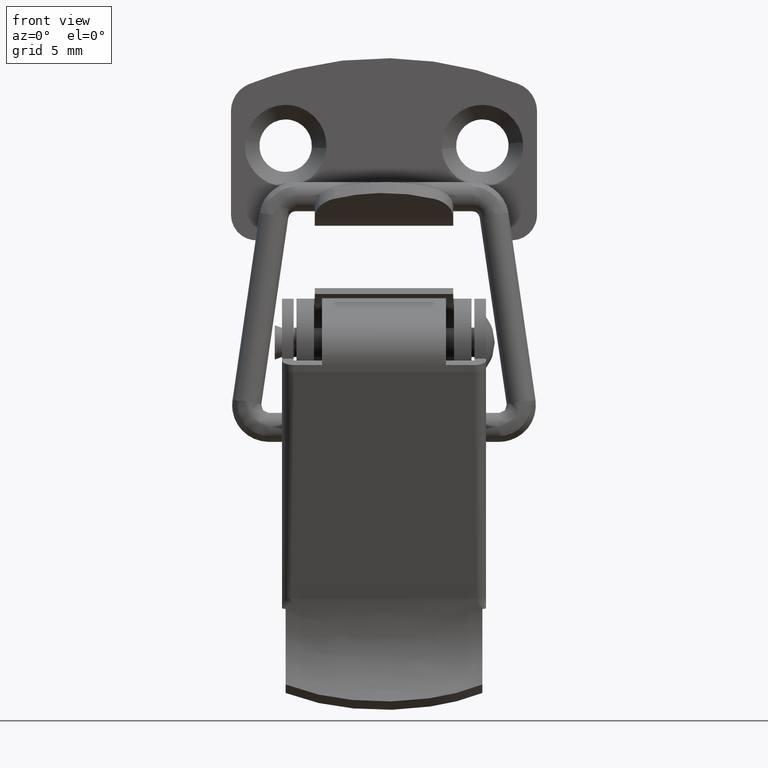
[diagram: clean part render]
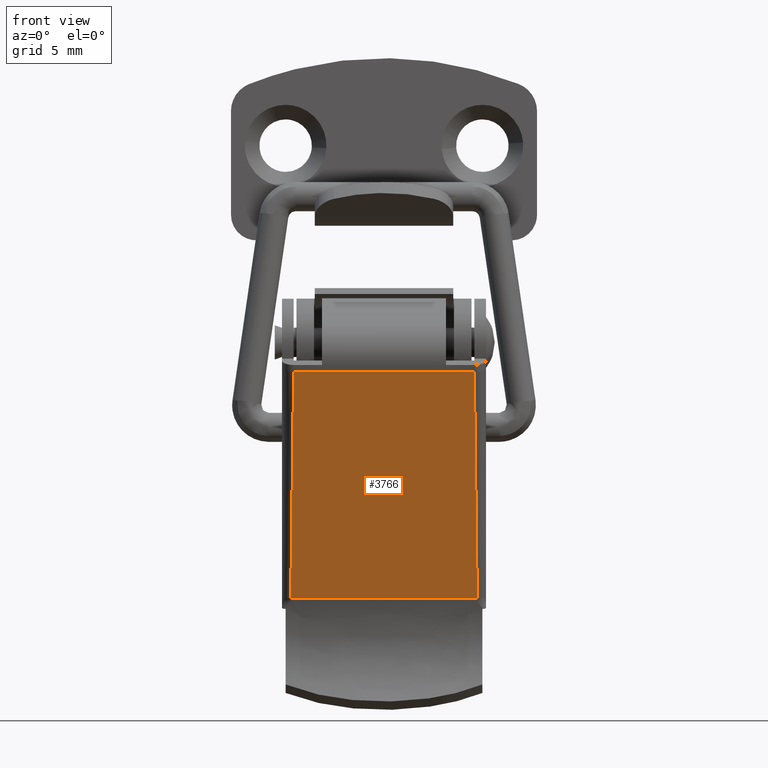
[diagram: same view with one face highlighted and labeled with its STEP entity id]
A machine part, front view. The second image highlights one B-rep face of the part: STEP entity #3766.
In plain terms, the highlighted face is a freeform B-spline surface patch.
Its self-contained STEP definition (entity closure, byte-faithful):
#3198=CARTESIAN_POINT('',(0.032199489179619,6.400000000000000,-27.583760013978701));
#3199=VERTEX_POINT('',#3198);
#3256=CARTESIAN_POINT('',(-6.211491311570910,6.200000000000000,-12.028519842825499));
#3257=VERTEX_POINT('',#3256);
#3281=CARTESIAN_POINT('',(-6.211491311570880,6.200000000000000,-12.028519842825499));
#3282=CARTESIAN_POINT('',(-4.130261044654046,6.200000000000000,-17.213599899876549));
#3283=CARTESIAN_POINT('',(-2.049030777737210,6.400000000000000,-22.398679956927651));
#3284=CARTESIAN_POINT('',(0.032199489179621,6.400000000000000,-27.583760013978701));
#3285=QUASI_UNIFORM_CURVE('',3,(#3281,#3282,#3283,#3284),.UNSPECIFIED.,.F.,.U.);
#3286=EDGE_CURVE('',#3257,#3199,#3285,.T.);
#3396=CARTESIAN_POINT('',(0.032199489179619,-6.400000000000000,-27.583760013978701));
#3397=VERTEX_POINT('',#3396);
#3447=CARTESIAN_POINT('',(-6.211491311570910,-6.200000000000000,-12.028519842825499));
#3448=VERTEX_POINT('',#3447);
#3462=CARTESIAN_POINT('',(0.032199489179621,-6.400000000000000,-27.583760013978701));
#3463=CARTESIAN_POINT('',(-2.049030777737210,-6.400000000000000,-22.398679956927651));
#3464=CARTESIAN_POINT('',(-4.130261044654046,-6.200000000000000,-17.213599899876549));
#3465=CARTESIAN_POINT('',(-6.211491311570880,-6.200000000000000,-12.028519842825499));
#3466=QUASI_UNIFORM_CURVE('',3,(#3462,#3463,#3464,#3465),.UNSPECIFIED.,.F.,.U.);
#3467=EDGE_CURVE('',#3397,#3448,#3466,.T.);
#3747=CARTESIAN_POINT('',(-6.523363691271343,-7.039360095348359,-11.251535535978240));
#3748=CARTESIAN_POINT('',(0.344071533942410,-7.039360095348359,-28.360743486377839));
#3749=CARTESIAN_POINT('',(-6.523363691271343,7.039360324230195,-11.251535535978240));
#3750=CARTESIAN_POINT('',(0.344071533942410,7.039360324230195,-28.360743486377839));
#3751=B_SPLINE_SURFACE_WITH_KNOTS('',1,1,((#3747,#3749),(#3748,#3750)),.UNSPECIFIED.,.F.,.F.,.U.,(2,2),(2,2),(0.0,18.436015384635681),(0.0,14.078720419578550),.UNSPECIFIED.);
#3752=CARTESIAN_POINT('',(-6.211491311570910,-6.200000000000000,-12.028519842825499));
#3753=CARTESIAN_POINT('',(-6.211491311570910,6.200000000000000,-12.028519842825499));
#3754=QUASI_UNIFORM_CURVE('',1,(#3752,#3753),.UNSPECIFIED.,.F.,.U.);
#3755=EDGE_CURVE('',#3448,#3257,#3754,.T.);
#3756=ORIENTED_EDGE('',*,*,#3755,.T.);
#3757=ORIENTED_EDGE('',*,*,#3286,.T.);
#3758=CARTESIAN_POINT('',(0.032199489179619,-6.400000000000000,-27.583760013978701));
#3759=CARTESIAN_POINT('',(0.032199489179619,6.400000000000000,-27.583760013978701));
#3760=QUASI_UNIFORM_CURVE('',1,(#3758,#3759),.UNSPECIFIED.,.F.,.U.);
#3761=EDGE_CURVE('',#3397,#3199,#3760,.T.);
#3762=ORIENTED_EDGE('',*,*,#3761,.F.);
#3763=ORIENTED_EDGE('',*,*,#3467,.T.);
#3764=EDGE_LOOP('',(#3756,#3757,#3762,#3763));
#3765=FACE_OUTER_BOUND('',#3764,.T.);
#3766=ADVANCED_FACE('',(#3765),#3751,.F.);